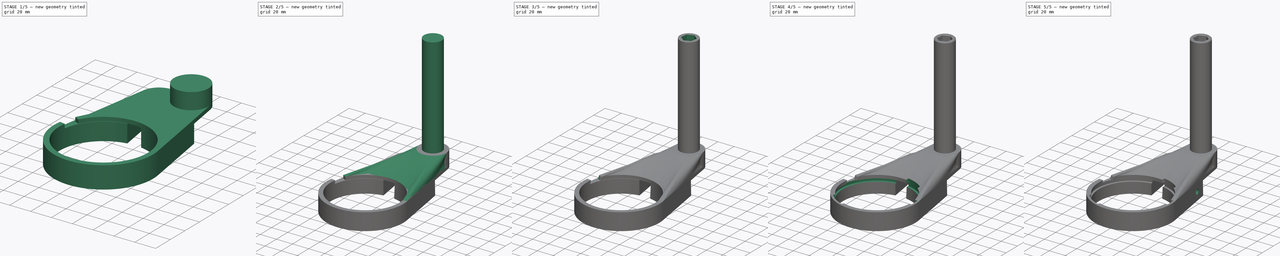
[diagram: build sequence overview — one tinted view per stage of 5, left to right]
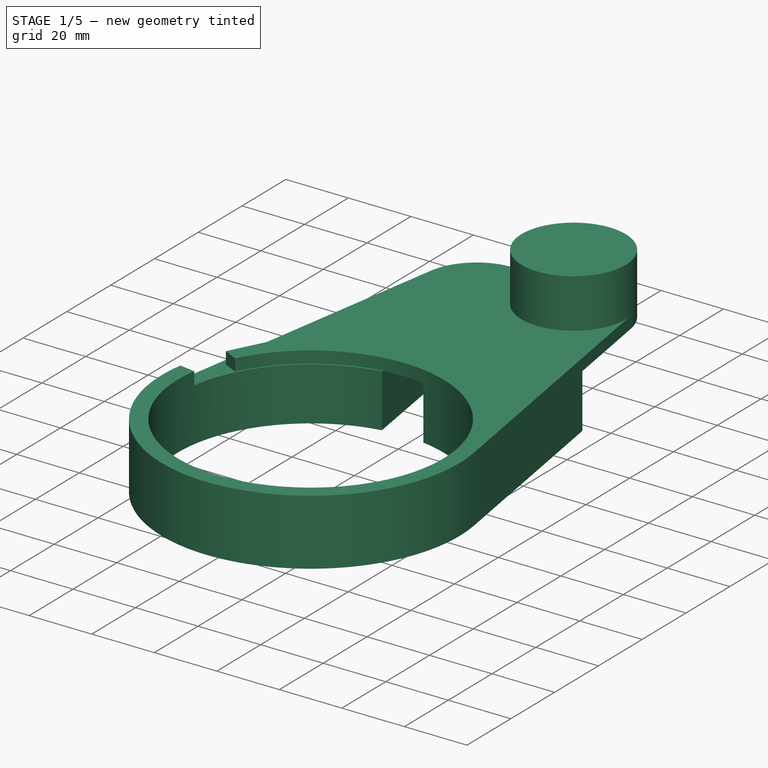
[diagram: stage 1 of 5 — iso view after this stage's code; geometry added in this stage tinted green]
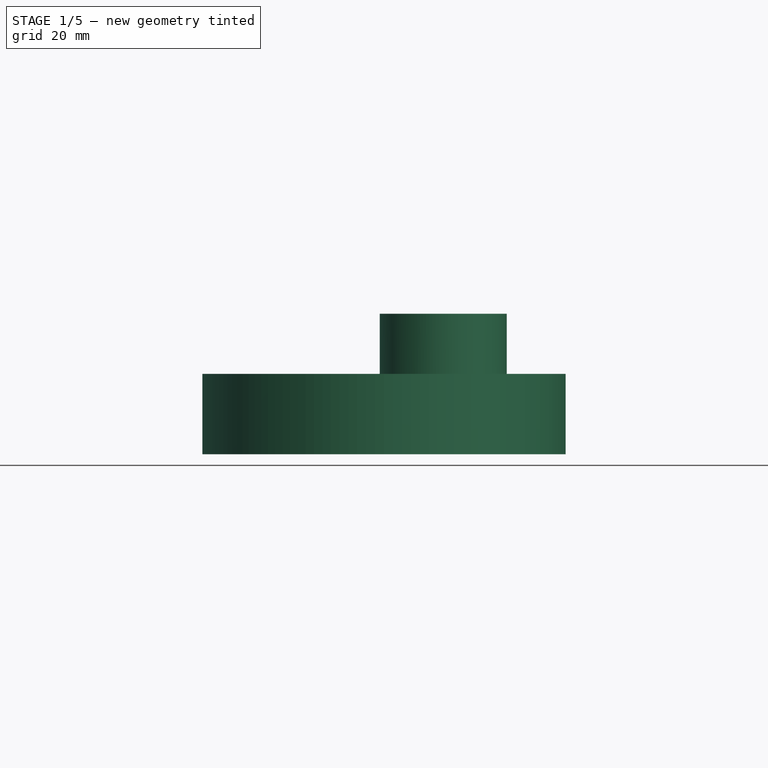
[diagram: stage 1 of 5 — front view after this stage's code; geometry added in this stage tinted green]
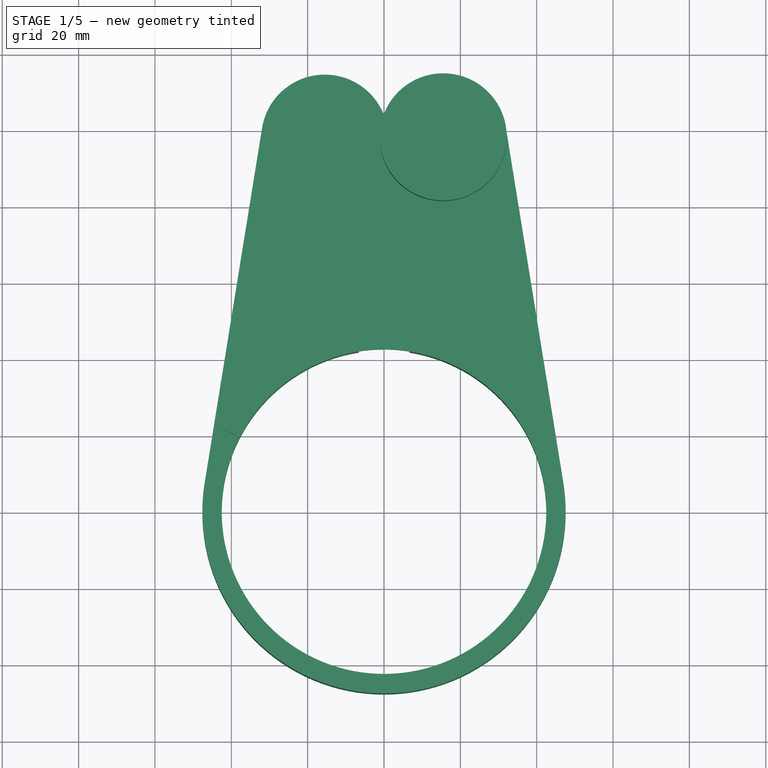
[diagram: stage 1 of 5 — top view after this stage's code; geometry added in this stage tinted green]
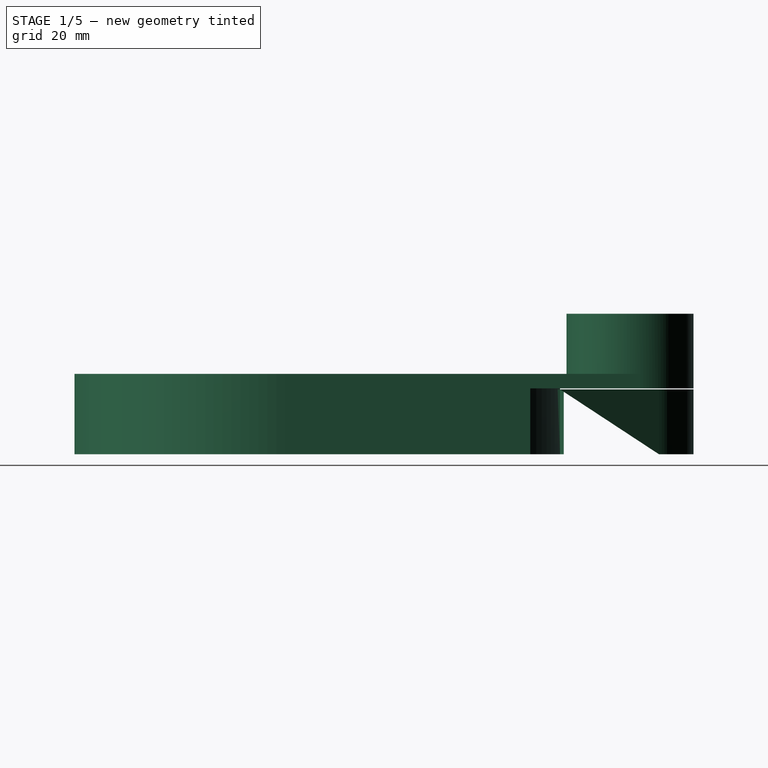
[diagram: stage 1 of 5 — right view after this stage's code; geometry added in this stage tinted green]
FCSTD DOCUMENT  (FreeCAD 0.21R33771 (Git))
Label: camera_handle
License: All rights reserved
LicenseURL: http://en.wikipedia.org/wiki/All_rights_reserved
objects: Sketcher::SketchObject×21, PartDesign::Pad×6, PartDesign::Pocket×6, PartDesign::Hole×5, PartDesign::Plane×3, PartDesign::Groove×2, PartDesign::AdditiveLoft×1, PartDesign::Line×1, PartDesign::CoordinateSystem×1, PartDesign::Chamfer×1, PartDesign::Body×1
note: 69 computed .brp shape members not serialized (recipe doc carries the construction recipe); baked Part::Feature solids carry a one-line shape summary decoded from their .brp

FEATURE [Sketcher::SketchObject] Sketch
  FullyConstrained = true
  MapMode = 5
  Support = -> [XY_Plane]
  sketch-geometry (15):
    g0: Circle CenterX=0 CenterY=0 CenterZ=0 NormalX=0 NormalY=0 NormalZ=1 AngleXU=0 Radius=42.5116
    g1: Circle CenterX=0 CenterY=0 CenterZ=0 NormalX=0 NormalY=0 NormalZ=1 AngleXU=0 Radius=47.5916
    g2: LineSegment StartX=42.5116 StartY=0 StartZ=0 EndX=47.5916 EndY=0 EndZ=0
    g3: Circle CenterX=-15.511 CenterY=97.9328 CenterZ=0 NormalX=0 NormalY=0 NormalZ=1 AngleXU=0 Radius=16.637
    g4: Circle CenterX=15.511 CenterY=97.9328 CenterZ=0 NormalX=0 NormalY=0 NormalZ=1 AngleXU=0 Radius=16.637
    g5: LineSegment StartX=0 StartY=0 StartZ=0 EndX=-15.511 EndY=97.9328 EndZ=0
    g6: LineSegment StartX=0 StartY=0 StartZ=0 EndX=15.511 EndY=97.9328 EndZ=0
    g7: GeomPoint X=-12.9084 Y=81.5007 Z=0
    g8: GeomPoint X=-7.44496 Y=47.0056 Z=0
    g9: LineSegment StartX=-31.9344 StartY=100.59 StartZ=0 EndX=-46.9805 EndY=7.60174 EndZ=0
    g10: LineSegment StartX=31.9344 StartY=100.59 StartZ=0 EndX=46.9805 EndY=7.60174 EndZ=0
    g11: LineSegment StartX=-42.3321 StartY=21.7475 StartZ=0 EndX=0.712643 EndY=105.535 EndZ=0
    g12: LineSegment StartX=-0.712643 StartY=105.535 StartZ=0 EndX=42.3321 EndY=21.7475 EndZ=0
    g13: ArcOfCircle CenterX=0 CenterY=0 CenterZ=0 NormalX=0 NormalY=0 NormalZ=1 AngleXU=0 Radius=80.598 StartAngle=1.09956 EndAngle=2.04204
    g14: GeomPoint X=12.6083 Y=79.6057 Z=0
  constraints (35):
    c: Coincident(g0,g-1)
    c: Diameter(g0) = 85.0232
    c: Coincident(g1,g0)
    c: PointOnObject(g2,g0)
    c: PointOnObject(g2,g1)
    c: Horizontal(g2)
    c: Perpendicular(g1,g2)
    c: DistanceX(g2,g2) = 5.08
    c: Symmetric(g3,g4,g-2)
    c: Coincident(g5,g0)
    c: Coincident(g5,g3)
    c: Coincident(g6,g0)
    c: Coincident(g6,g4)
    c: Equal(g3,g4)
    c: Angle(g6,g5) = 0.314159
    c: Diameter(g4) = 33.274
    c: PointOnObject(g7,g3)
    c: PointOnObject(g7,g5)
    c: PointOnObject(g8,g1)
    c: PointOnObject(g8,g5)
    c: Distance(g8,g7) = 34.925
    c: Tangent(g9,g1) = -1.5708
    c: Tangent(g9,g3) = -1.5708
    c: Tangent(g11,g4) = 1.5708
    c: Tangent(g11,g1) = 1.5708
    c: Tangent(g12,g3) = 1.5708
    c: Tangent(g12,g1) = 1.5708
    c: Tangent(g10,g4) = 1.5708
    c: Tangent(g10,g1) = 1.5708
    c: Coincident(g13,g0)
    c: PointOnObject(g13,g9)
    c: PointOnObject(g13,g10)
    c: PointOnObject(g14,g6)
    c: PointOnObject(g14,g13)
    c: PointOnObject(g14,g12)
FEATURE [Sketcher::SketchObject] Sketch001
  FullyConstrained = true
  MapMode = 5
  Support = -> [XY_Plane]
  expr: Constraints[14] = Sketch.Constraints[14]
  expr: Constraints[15] = Sketch.Constraints[15]
  expr: Constraints[1] = Sketch.Constraints[1]
  expr: Constraints[20] = Sketch.Constraints[20]
  expr: Constraints[7] = Sketch.Constraints[7]
  sketch-geometry (20):
    g0: ArcOfCircle CenterX=0 CenterY=0 CenterZ=0 NormalX=0 NormalY=0 NormalZ=1 AngleXU=0 Radius=42.5116 StartAngle=1.72788 EndAngle=7.6969
    g1: ArcOfCircle CenterX=0 CenterY=0 CenterZ=0 NormalX=0 NormalY=0 NormalZ=1 AngleXU=0 Radius=47.5916 StartAngle=2.98118 EndAngle=6.4436
    g2: LineSegment StartX=42.5116 StartY=0 StartZ=0 EndX=47.5916 EndY=0 EndZ=0
    g3: ArcOfCircle CenterX=-15.511 CenterY=97.9328 CenterZ=0 NormalX=0 NormalY=0 NormalZ=1 AngleXU=0 Radius=16.637 StartAngle=0.474575 EndAngle=2.98118
    g4: Circle CenterX=15.511 CenterY=97.9328 CenterZ=0 NormalX=0 NormalY=0 NormalZ=1 AngleXU=0 Radius=16.637
    g5: LineSegment StartX=0 StartY=0 StartZ=0 EndX=-15.511 EndY=97.9328 EndZ=0
    g6: LineSegment StartX=0 StartY=0 StartZ=0 EndX=15.511 EndY=97.9328 EndZ=0
    g7: GeomPoint X=-12.9084 Y=81.5007 Z=0
    g8: GeomPoint X=-7.44496 Y=47.0056 Z=0
    g9: LineSegment StartX=-31.9344 StartY=100.59 StartZ=0 EndX=-46.9805 EndY=7.60174 EndZ=0
    g10: LineSegment StartX=31.9344 StartY=100.59 StartZ=0 EndX=46.9805 EndY=7.60174 EndZ=0
    g11: LineSegment StartX=-42.3321 StartY=21.7475 StartZ=0 EndX=0.712643 EndY=105.535 EndZ=0
    g12: LineSegment StartX=-0.712643 StartY=105.535 StartZ=0 EndX=12.6083 EndY=79.6057 EndZ=0
    g13: LineSegment StartX=-12.6083 StartY=79.6057 StartZ=0 EndX=-7.44496 EndY=47.0056 EndZ=0
    g14: Circle CenterX=-15.511 CenterY=97.9328 CenterZ=0 NormalX=0 NormalY=0 NormalZ=1 AngleXU=0 Radius=16.637
    g15: ArcOfCircle CenterX=0 CenterY=0 CenterZ=0 NormalX=0 NormalY=0 NormalZ=1 AngleXU=0 Radius=80.598 StartAngle=1.41372 EndAngle=1.72788
    g16: LineSegment StartX=6.65028 StartY=41.9882 StartZ=0 EndX=12.6083 EndY=79.6057 EndZ=0
    g17: LineSegment StartX=-6.65028 StartY=41.9882 StartZ=0 EndX=-7.44496 EndY=47.0056 EndZ=0
    g18: ArcOfCircle CenterX=0 CenterY=0 CenterZ=0 NormalX=0 NormalY=0 NormalZ=1 AngleXU=0 Radius=80.598 StartAngle=1.09956 EndAngle=1.41372
    g19: LineSegment StartX=36.5907 StartY=71.8133 StartZ=0 EndX=46.9805 EndY=7.60174 EndZ=0
  constraints (49):
    c: Coincident(g0,g-1)
    c: Diameter(g0) = 85.0232
    c: Coincident(g1,g0)
    c: PointOnObject(g2,g0)
    c: PointOnObject(g2,g1)
    c: Horizontal(g2)
    c: Perpendicular(g1,g2)
    c: DistanceX(g2,g2) = 5.08
    c: Symmetric(g3,g4,g-2)
    c: Coincident(g5,g0)
    c: Coincident(g5,g3)
    c: Coincident(g6,g0)
    c: Coincident(g6,g4)
    c: Equal(g3,g4)
    c: Angle(g6,g5) = 0.314159
    c: Diameter(g4) = 33.274
    c: PointOnObject(g7,g3)
    c: PointOnObject(g7,g5)
    c: PointOnObject(g8,g1)
    c: PointOnObject(g8,g5)
    c: Distance(g8,g7) = 34.925
    c: Tangent(g11,g4) = 1.5708
    c: Tangent(g10,g4) = 1.5708
    c: Tangent(g3,g12) = 1.5708
    c: Tangent(g3,g9) = -1.5708
    c: PointOnObject(g13,g5)
    c: Coincident(g13,g8)
    c: Tangent(g1,g9) = -1.5708
    c: Tangent(g12,g1)
    c: Coincident(g14,g3)
    c: PointOnObject(g3,g14)
    c: PointOnObject(g12,g6)
    c: Coincident(g15,g0)
    c: Coincident(g15,g12)
    c: Coincident(g15,g13)
    c: Tangent(g11,g1) = 1.5708
    c: PointOnObject(g16,g6)
    c: PointOnObject(g0,g6)
    c: PointOnObject(g0,g5)
    c: Coincident(g16,g0)
    c: Coincident(g17,g0)
    c: Coincident(g17,g13)
    c: Coincident(g18,g0)
    c: Coincident(g18,g12)
    c: PointOnObject(g18,g10)
    c: Coincident(g19,g18)
    c: Coincident(g19,g10)
    c: Tangent(g1,g10) = 1.5708
    c: PointOnObject(g16,g18)
FEATURE [PartDesign::Pad] Pad
  Direction = (0,0,1)
  Length = 17.018
  Length2 = 10
  Profile = -> Sketch001
  ReferenceAxis = -> Sketch001 [N_Axis]
  Type = 0
FEATURE [Sketcher::SketchObject] Sketch003
  ExternalGeometry = -> [Pad]
  FullyConstrained = true
  MapMode = 5
  Placement = pos=(0,0,17.018) rot=(0,0,1;0rad)
  Support = -> [Pad]
  sketch-geometry (6):
    g0: ArcOfCircle CenterX=0 CenterY=0 CenterZ=0 NormalX=0 NormalY=0 NormalZ=1 AngleXU=0 Radius=47.5916 StartAngle=2.98118 EndAngle=6.4436
    g1: ArcOfCircle CenterX=0 CenterY=0 CenterZ=0 NormalX=0 NormalY=0 NormalZ=1 AngleXU=0 Radius=80.598 StartAngle=1.09956 EndAngle=1.41372
    g2: ArcOfCircle CenterX=0 CenterY=0 CenterZ=0 NormalX=0 NormalY=0 NormalZ=1 AngleXU=0 Radius=42.5116 StartAngle=2.98118 EndAngle=7.6969
    g3: LineSegment StartX=46.9806 StartY=7.60165 StartZ=0 EndX=36.5907 EndY=71.8133 EndZ=0
    g4: LineSegment StartX=6.65028 StartY=41.9882 StartZ=0 EndX=12.6083 EndY=79.6057 EndZ=0
    g5: LineSegment StartX=-46.9805 StartY=7.60174 StartZ=0 EndX=-41.9658 EndY=6.79032 EndZ=0
  constraints (18):
    c: Coincident(g0,g-7)
    c: Coincident(g0,g-7)
    c: Coincident(g1,g0)
    c: Coincident(g1,g-4)
    c: Coincident(g2,g0)
    c: PointOnObject(g1,g-5)
    c: PointOnObject(g2,g-4)
    c: PointOnObject(g0,g-5)
    c: Coincident(g3,g0)
    c: PointOnObject(g3,g-5)
    c: PointOnObject(g3,g1)
    c: Coincident(g4,g2)
    c: PointOnObject(g4,g1)
    c: PointOnObject(g4,g-4)
    c: Coincident(g5,g0)
    c: PointOnObject(g0,g5)
    c: Coincident(g2,g5)
    c: PointOnObject(g2,g-6)
FEATURE [PartDesign::Pad] Pad002
  BaseFeature = -> Pad
  Direction = (0,0,1)
  Length = 0.254
  Length2 = 10
  Profile = -> Sketch003
  ReferenceAxis = -> Sketch003 [N_Axis]
  Type = 0
FEATURE [Sketcher::SketchObject] Sketch004
  FullyConstrained = true
  MapMode = 5
  Placement = pos=(0,0,17.272) rot=(0,0,1;0rad)
  Support = -> [Pad002]
  expr: Constraints[14] = Sketch.Constraints[14]
  expr: Constraints[15] = Sketch.Constraints[15]
  expr: Constraints[1] = Sketch.Constraints[1]
  expr: Constraints[20] = Sketch.Constraints[20]
  expr: Constraints[7] = Sketch.Constraints[7]
  sketch-geometry (14):
    g0: ArcOfCircle CenterX=0 CenterY=0 CenterZ=0 NormalX=0 NormalY=0 NormalZ=1 AngleXU=0 Radius=42.5116 StartAngle=2.98118 EndAngle=8.9502
    g1: ArcOfCircle CenterX=0 CenterY=0 CenterZ=0 NormalX=0 NormalY=0 NormalZ=1 AngleXU=0 Radius=47.5916 StartAngle=2.98118 EndAngle=6.4436
    g2: LineSegment StartX=42.5116 StartY=0 StartZ=0 EndX=47.5916 EndY=0 EndZ=0
    g3: Circle CenterX=-15.511 CenterY=97.9328 CenterZ=0 NormalX=0 NormalY=0 NormalZ=1 AngleXU=0 Radius=16.637
    g4: ArcOfCircle CenterX=15.511 CenterY=97.9328 CenterZ=0 NormalX=0 NormalY=0 NormalZ=1 AngleXU=0 Radius=16.637 StartAngle=0.160416 EndAngle=2.66702
    g5: LineSegment StartX=0 StartY=0 StartZ=0 EndX=-15.511 EndY=97.9328 EndZ=0
    g6: LineSegment StartX=0 StartY=0 StartZ=0 EndX=15.511 EndY=97.9328 EndZ=0
    g7: GeomPoint X=-12.9084 Y=81.5007 Z=0
    g8: GeomPoint X=-7.44496 Y=47.0056 Z=0
    g9: LineSegment StartX=-31.9344 StartY=100.59 StartZ=0 EndX=-46.9805 EndY=7.60174 EndZ=0
    g10: LineSegment StartX=31.9344 StartY=100.59 StartZ=0 EndX=46.9805 EndY=7.60174 EndZ=0
    g11: LineSegment StartX=-42.3321 StartY=21.7475 StartZ=0 EndX=0.712643 EndY=105.535 EndZ=0
    g12: LineSegment StartX=-46.9805 StartY=7.60174 StartZ=0 EndX=-41.9658 EndY=6.79032 EndZ=0
    g13: LineSegment StartX=-42.3321 StartY=21.7475 StartZ=0 EndX=-37.8135 EndY=19.4261 EndZ=0
  constraints (34):
    c: Coincident(g0,g-1)
    c: Diameter(g0) = 85.0232
    c: Coincident(g1,g0)
    c: PointOnObject(g2,g0)
    c: PointOnObject(g2,g1)
    c: Horizontal(g2)
    c: Perpendicular(g1,g2)
    c: DistanceX(g2,g2) = 5.08
    c: Symmetric(g3,g4,g-2)
    c: Coincident(g5,g0)
    c: Coincident(g5,g3)
    c: Coincident(g6,g0)
    c: Coincident(g6,g4)
    c: Equal(g3,g4)
    c: Angle(g6,g5) = 0.314159
    c: Diameter(g4) = 33.274
    c: PointOnObject(g7,g3)
    c: PointOnObject(g7,g5)
    c: PointOnObject(g8,g1)
    c: PointOnObject(g8,g5)
    c: Distance(g8,g7) = 34.925
    c: Tangent(g9,g3) = -1.5708
    c: Coincident(g12,g9)
    c: Coincident(g13,g11)
    c: PointOnObject(g0,g12)
    c: PointOnObject(g0,g13)
    c: Tangent(g1,g9) = -1.5708
    c: Coincident(g0,g13)
    c: Coincident(g0,g12)
    c: Tangent(g4,g10) = 1.5708
    c: Tangent(g4,g11) = 1.5708
    c: Tangent(g1,g10) = 1.5708
    c: Angle(g13,g12) = 0.314159
    c: Tangent(g11,g1)
FEATURE [PartDesign::Pad] Pad003
  BaseFeature = -> Pad002
  Direction = (0,0,1)
  Length = 3.81
  Length2 = 10
  Profile = -> Sketch004
  ReferenceAxis = -> Sketch004 [N_Axis]
  Type = 0
FEATURE [Sketcher::SketchObject] Sketch005
  FullyConstrained = true
  MapMode = 5
  Placement = pos=(0,0,21.082) rot=(0,0,1;0rad)
  Support = -> [Pad003]
  expr: Constraints[14] = Sketch.Constraints[14]
  expr: Constraints[15] = Sketch.Constraints[15]
  expr: Constraints[1] = Sketch.Constraints[1]
  expr: Constraints[20] = Sketch.Constraints[20]
  expr: Constraints[7] = Sketch.Constraints[7]
  sketch-geometry (15):
    g0: Circle CenterX=0 CenterY=0 CenterZ=0 NormalX=0 NormalY=0 NormalZ=1 AngleXU=0 Radius=42.5116
    g1: Circle CenterX=0 CenterY=0 CenterZ=0 NormalX=0 NormalY=0 NormalZ=1 AngleXU=0 Radius=47.5916
    g2: LineSegment StartX=42.5116 StartY=0 StartZ=0 EndX=47.5916 EndY=0 EndZ=0
    g3: Circle CenterX=-15.511 CenterY=97.9328 CenterZ=0 NormalX=0 NormalY=0 NormalZ=1 AngleXU=0 Radius=16.637
    g4: Circle CenterX=15.511 CenterY=97.9328 CenterZ=0 NormalX=0 NormalY=0 NormalZ=1 AngleXU=0 Radius=16.637
    g5: LineSegment StartX=0 StartY=0 StartZ=0 EndX=-15.511 EndY=97.9328 EndZ=0
    g6: LineSegment StartX=0 StartY=0 StartZ=0 EndX=15.511 EndY=97.9328 EndZ=0
    g7: GeomPoint X=-12.9084 Y=81.5007 Z=0
    g8: GeomPoint X=-7.44496 Y=47.0056 Z=0
    g9: LineSegment StartX=-31.9344 StartY=100.59 StartZ=0 EndX=-46.9805 EndY=7.60174 EndZ=0
    g10: LineSegment StartX=31.9344 StartY=100.59 StartZ=0 EndX=46.9805 EndY=7.60174 EndZ=0
    g11: LineSegment StartX=-42.3321 StartY=21.7475 StartZ=0 EndX=0.712643 EndY=105.535 EndZ=0
    g12: LineSegment StartX=-0.712643 StartY=105.535 StartZ=0 EndX=42.3321 EndY=21.7475 EndZ=0
    g13: ArcOfCircle CenterX=0 CenterY=0 CenterZ=0 NormalX=0 NormalY=0 NormalZ=1 AngleXU=0 Radius=80.598 StartAngle=1.09956 EndAngle=2.04204
    g14: GeomPoint X=12.6083 Y=79.6057 Z=0
  constraints (35):
    c: Coincident(g0,g-1)
    c: Diameter(g0) = 85.0232
    c: Coincident(g1,g0)
    c: PointOnObject(g2,g0)
    c: PointOnObject(g2,g1)
    c: Horizontal(g2)
    c: Perpendicular(g1,g2)
    c: DistanceX(g2,g2) = 5.08
    c: Symmetric(g3,g4,g-2)
    c: Coincident(g5,g0)
    c: Coincident(g5,g3)
    c: Coincident(g6,g0)
    c: Coincident(g6,g4)
    c: Equal(g3,g4)
    c: Angle(g6,g5) = 0.314159
    c: Diameter(g4) = 33.274
    c: PointOnObject(g7,g3)
    c: PointOnObject(g7,g5)
    c: PointOnObject(g8,g1)
    c: PointOnObject(g8,g5)
    c: Distance(g8,g7) = 34.925
    c: Tangent(g9,g1) = -1.5708
    c: Tangent(g9,g3) = -1.5708
    c: Tangent(g11,g4) = 1.5708
    c: Tangent(g11,g1) = 1.5708
    c: Tangent(g12,g3) = 1.5708
    c: Tangent(g12,g1) = 1.5708
    c: Tangent(g10,g4) = 1.5708
    c: Tangent(g10,g1) = 1.5708
    c: Coincident(g13,g0)
    c: PointOnObject(g13,g9)
    c: PointOnObject(g13,g10)
    c: PointOnObject(g14,g6)
    c: PointOnObject(g14,g13)
    c: PointOnObject(g14,g12)
FEATURE [PartDesign::Pad] Pad004
  BaseFeature = -> Pad003
  Direction = (0,0,1)
  Length = 15.748
  Length2 = 10
  Profile = -> Sketch005
  ReferenceAxis = -> Sketch005 [N_Axis]
  Type = 0
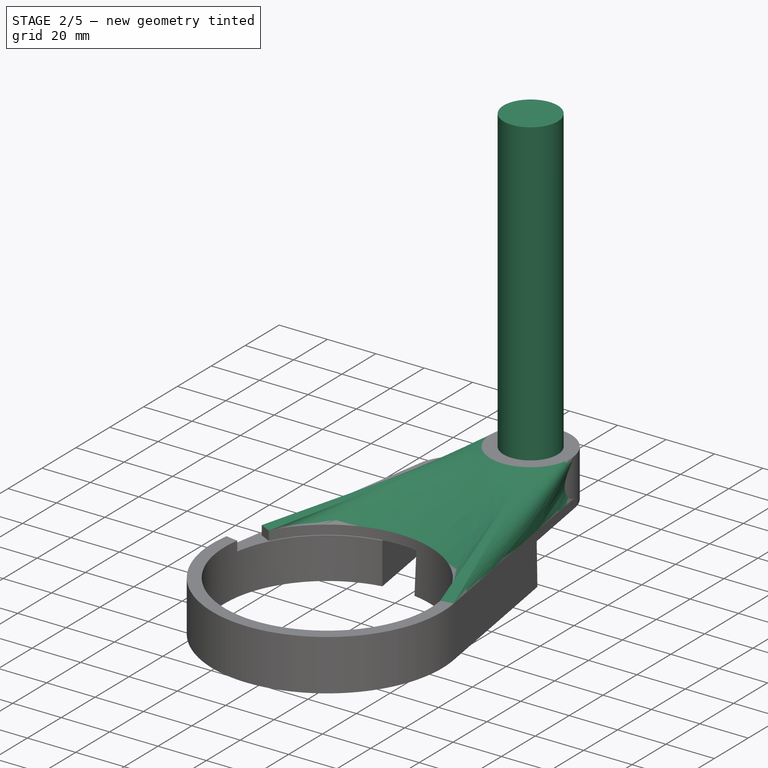
[diagram: stage 2 of 5 — iso view after this stage's code; geometry added in this stage tinted green]
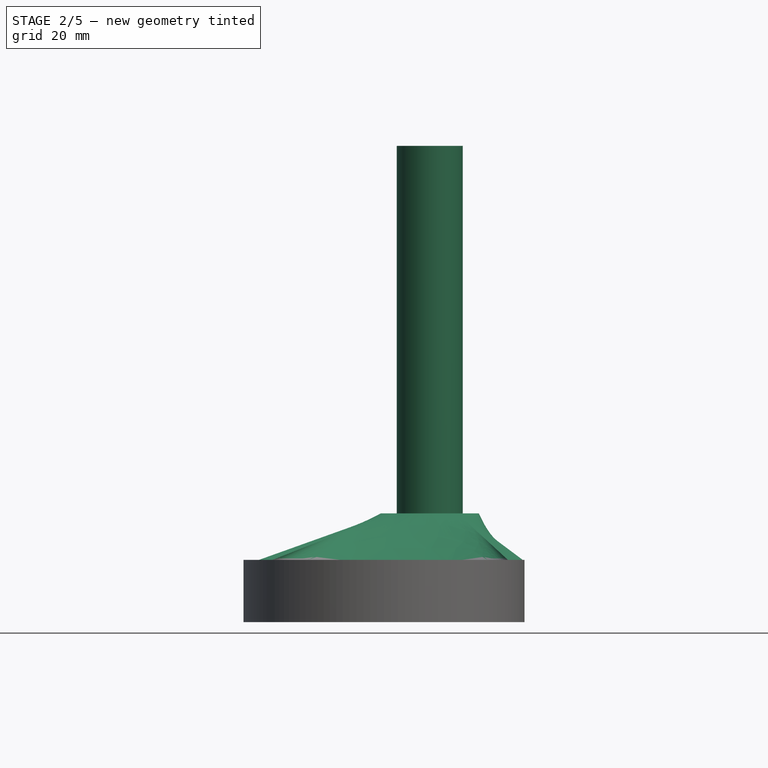
[diagram: stage 2 of 5 — front view after this stage's code; geometry added in this stage tinted green]
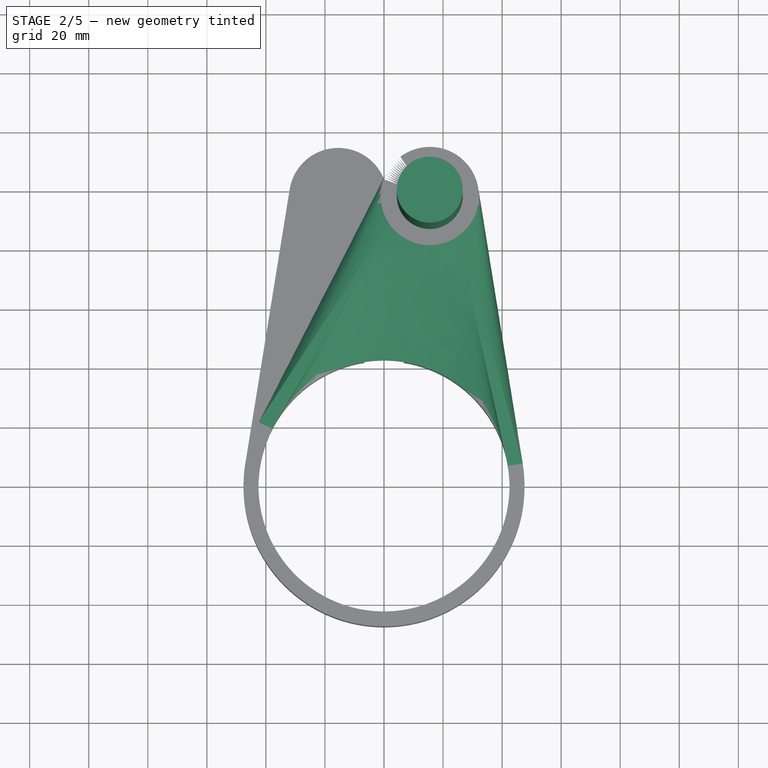
[diagram: stage 2 of 5 — top view after this stage's code; geometry added in this stage tinted green]
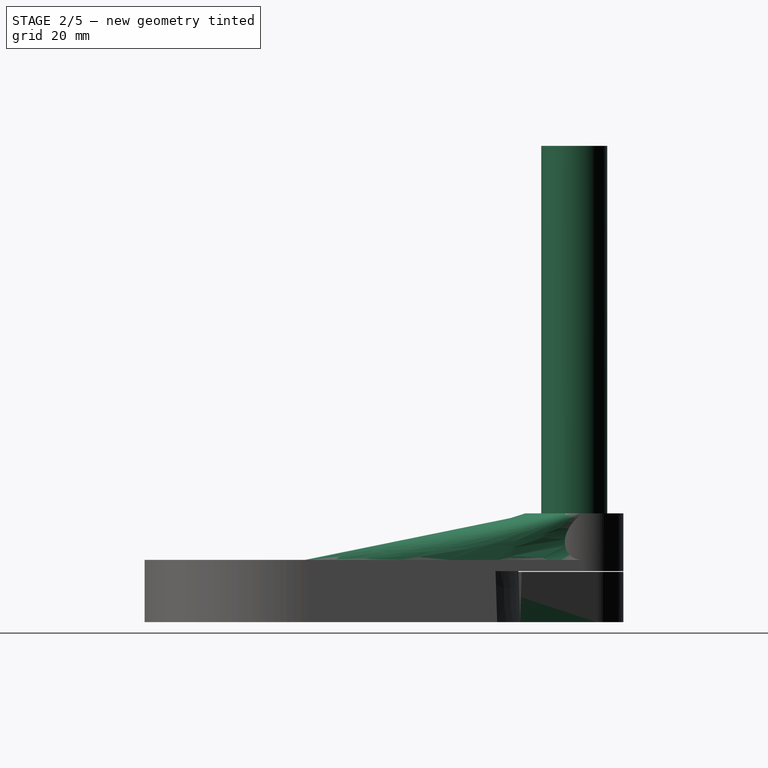
[diagram: stage 2 of 5 — right view after this stage's code; geometry added in this stage tinted green]
FEATURE [Sketcher::SketchObject] Sketch007
  ExternalGeometry = -> [Pad004]
  FullyConstrained = true
  MapMode = 5
  Placement = pos=(0,0,36.83) rot=(0,0,1;0rad)
  Support = -> [Pad004]
  sketch-geometry (1):
    g0: Circle CenterX=15.511 CenterY=97.9328 CenterZ=0 NormalX=0 NormalY=0 NormalZ=1 AngleXU=0 Radius=16.637
  constraints (2):
    c: Coincident(g0,g-3)
    c: Tangent(g0,g-3)
FEATURE [Sketcher::SketchObject] Sketch008
  ExternalGeometry = -> [Pad004]
  FullyConstrained = true
  MapMode = 5
  Placement = pos=(0,0,21.082) rot=(0,0,1;0rad)
  Support = -> [Pad004]
  sketch-geometry (6):
    g0: LineSegment StartX=-42.3321 StartY=21.7475 StartZ=0 EndX=0.712643 EndY=105.535 EndZ=0
    g1: LineSegment StartX=31.9344 StartY=100.59 StartZ=0 EndX=46.9805 EndY=7.60174 EndZ=0
    g2: ArcOfCircle CenterX=0 CenterY=0 CenterZ=0 NormalX=0 NormalY=0 NormalZ=1 AngleXU=0 Radius=42.5116 StartAngle=0.160416 EndAngle=2.66702
    g3: LineSegment StartX=-42.3321 StartY=21.7475 StartZ=0 EndX=-37.8135 EndY=19.4261 EndZ=0
    g4: LineSegment StartX=46.9805 StartY=7.60174 StartZ=0 EndX=41.9658 EndY=6.79032 EndZ=0
    g5: ArcOfCircle CenterX=15.511 CenterY=97.9328 CenterZ=0 NormalX=0 NormalY=0 NormalZ=1 AngleXU=0 Radius=16.637 StartAngle=0.160416 EndAngle=2.66702
  constraints (13):
    c: Coincident(g0,g-3)
    c: Coincident(g0,g-3)
    c: Coincident(g1,g-5)
    c: Coincident(g1,g-5)
    c: Coincident(g2,g-6)
    c: Coincident(g2,g-6)
    c: Coincident(g3,g0)
    c: Coincident(g3,g2)
    c: Coincident(g4,g1)
    c: Coincident(g4,g2)
    c: PointOnObject(g2,g4)
    c: Coincident(g5,g0)
    c: Tangent(g5,g1) = 1.5708
FEATURE [PartDesign::AdditiveLoft] AdditiveLoft
  BaseFeature = -> Pad004
  Closed = false
  Profile = -> Sketch007
  Ruled = true
  Sections = -> [Sketch008]
FEATURE [Sketcher::SketchObject] Sketch009
  ExternalGeometry = -> [Pad004]
  FullyConstrained = true
  MapMode = 5
  Placement = pos=(0,0,36.83) rot=(0,0,1;0rad)
  Support = -> [Pad004]
  sketch-geometry (1):
    g0: Circle CenterX=15.511 CenterY=97.9328 CenterZ=0 NormalX=0 NormalY=0 NormalZ=1 AngleXU=0 Radius=11.176
  constraints (2):
    c: Coincident(g0,g-3)
    c: Diameter(g0) = 22.352
FEATURE [PartDesign::Pad] Pad005
  BaseFeature = -> AdditiveLoft
  Direction = (0,0,1)
  Length = 124.46
  Length2 = 10
  Profile = -> Sketch009
  ReferenceAxis = -> Sketch009 [N_Axis]
  Type = 0
FEATURE [Sketcher::SketchObject] Sketch010
  ExternalGeometry = -> [Pad005]
  FullyConstrained = true
  MapMode = 5
  Placement = pos=(-7e-15,-1.1e-15,0) rot=(0.516965,0.605288,0.605288;2.18734rad)
  Support = -> [Pad005]
  sketch-geometry (3):
    g0: LineSegment StartX=80.1457 StartY=17.272 StartZ=0 EndX=80.598 EndY=7.21435e-10 EndZ=0
    g1: LineSegment StartX=80.598 StartY=7.21435e-10 StartZ=0 EndX=81.0503 EndY=17.272 EndZ=0
    g2: LineSegment StartX=80.1457 StartY=17.272 StartZ=0 EndX=81.0503 EndY=17.272 EndZ=0
  constraints (8):
    c: PointOnObject(g0,g-3)
    c: Coincident(g1,g0)
    c: Angle(g1,g0) = 0.0523599
    c: PointOnObject(g-3,g1)
    c: PointOnObject(g0,g-4)
    c: Coincident(g2,g0)
    c: Coincident(g2,g1)
    c: Symmetric(g0,g1,g-3)
FEATURE [PartDesign::Groove] Groove
  Angle = 40
  Axis = (1e-16,1e-16,1)
  Base = (0,0,0)
  BaseFeature = -> Pad005
  Profile = -> Sketch010
  ReferenceAxis = -> Z_Axis
  Reversed = true
FEATURE [PartDesign::Line] DatumLine
  AttacherType = Attacher::AttachEngineLine
  Length = 20
  MapMode = 29
  Placement = pos=(6.65028,41.9882,0) rot=(0,0,1;0rad)
  ResizeMode = 0
  Support = -> [Groove]
FEATURE [PartDesign::Plane] DatumPlane
  AttachmentOffset = pos=(0,0,0) rot=(0,-1,0;0.15708rad)
  Length = 148.906
  MapMode = 3
  Placement = pos=(0,0,0) rot=(0.993863,-0.078219,-0.078219;1.57695rad)
  ResizeMode = 0
  Support = -> [XY_Plane]
  Width = 216.082
FEATURE [PartDesign::CoordinateSystem] Local_CS
  AttacherType = Attacher::AttachEngine3D
  AttachmentOffset = pos=(0,0,0) rot=(0,0,-1;0.15708rad)
  MapMode = 1
  Placement = pos=(6.65028,41.9882,0) rot=(0,0,1;0rad)
  Support = -> [Groove]
FEATURE [PartDesign::Plane] DatumPlane001
  Length = 210.862
  MapMode = 13
  Placement = pos=(4.43352,27.9921,0.333333) rot=(0.637718,0.544663,0.544663;2.00621rad)
  ResizeMode = 0
  Support = -> [DatumLine,Z_Axis]
  Width = 222.378
FEATURE [PartDesign::Plane] DatumPlane002
  AttachmentOffset = pos=(0,0,0) rot=(-0.078219,-0.078219,-0.993863;1.57695rad)
  Length = 148.906
  MapMode = 2
  Placement = pos=(0,0,0) rot=(0.993863,-0.078219,-0.078219;1.57695rad)
  ResizeMode = 0
  Support = -> [Z_Axis]
  Width = 216.082
FEATURE [Sketcher::SketchObject] Sketch011
  ExternalGeometry = -> [Groove]
  FullyConstrained = true
  MapMode = 5
  Placement = pos=(0,0,0) rot=(0.993863,-0.078219,-0.078219;1.57695rad)
  Support = -> [DatumPlane002]
  sketch-geometry (3):
    g0: LineSegment StartX=8.1e-15 StartY=17.272 StartZ=0 EndX=0.905187 EndY=17.272 EndZ=0
    g1: LineSegment StartX=0.905187 StartY=17.272 StartZ=0 EndX=0 EndY=-1.315e-13 EndZ=0
    g2: LineSegment StartX=0 StartY=-1.315e-13 StartZ=0 EndX=8.1e-15 EndY=17.272 EndZ=0
  constraints (8):
    c: Coincident(g-4,g0)
    c: PointOnObject(g0,g-4)
    c: Coincident(g0,g1)
    c: PointOnObject(g1,g-2)
    c: Coincident(g1,g2)
    c: Coincident(g2,g0)
    c: PointOnObject(g-3,g1)
    c: Angle(g1,g2) = 0.0523599
FEATURE [PartDesign::Pocket] Pocket
  BaseFeature = -> Groove
  Direction = (0.156434,0.987688,0)
  Length = 81.2038
  Length2 = 5
  Profile = -> Sketch011
  ReferenceAxis = -> Sketch011 [N_Axis]
  Type = 0
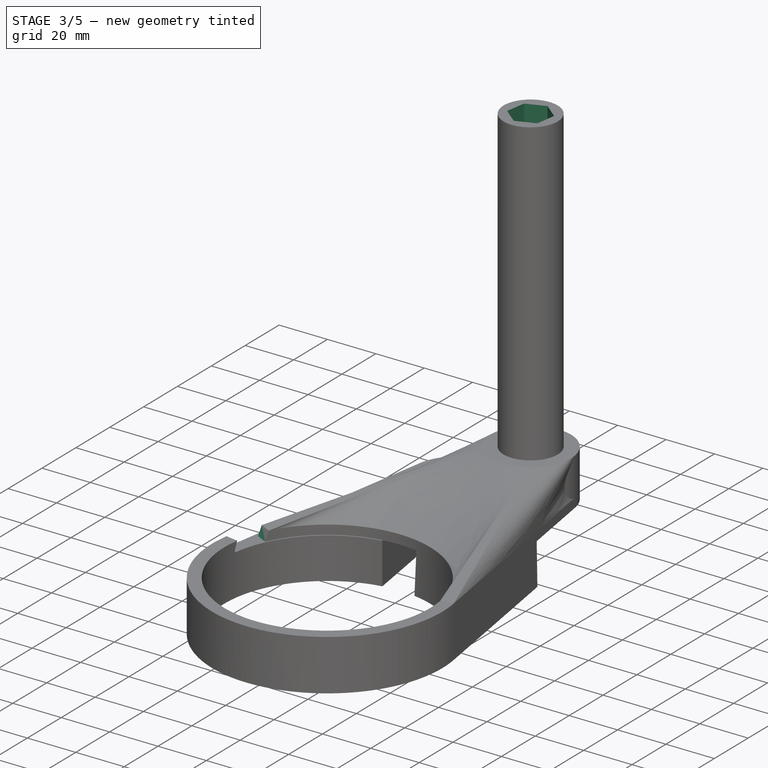
[diagram: stage 3 of 5 — iso view after this stage's code; geometry added in this stage tinted green]
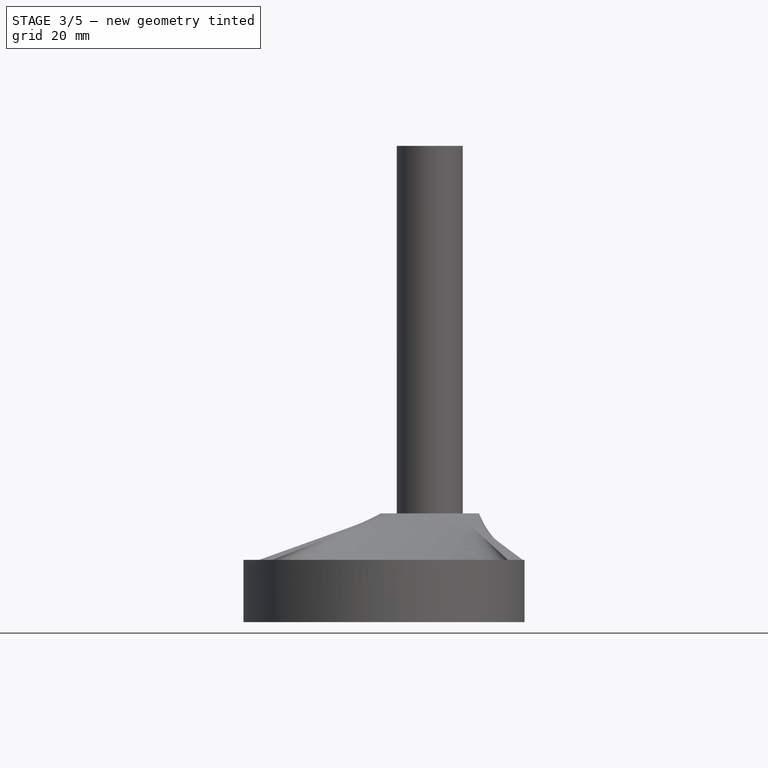
[diagram: stage 3 of 5 — front view after this stage's code; geometry added in this stage tinted green]
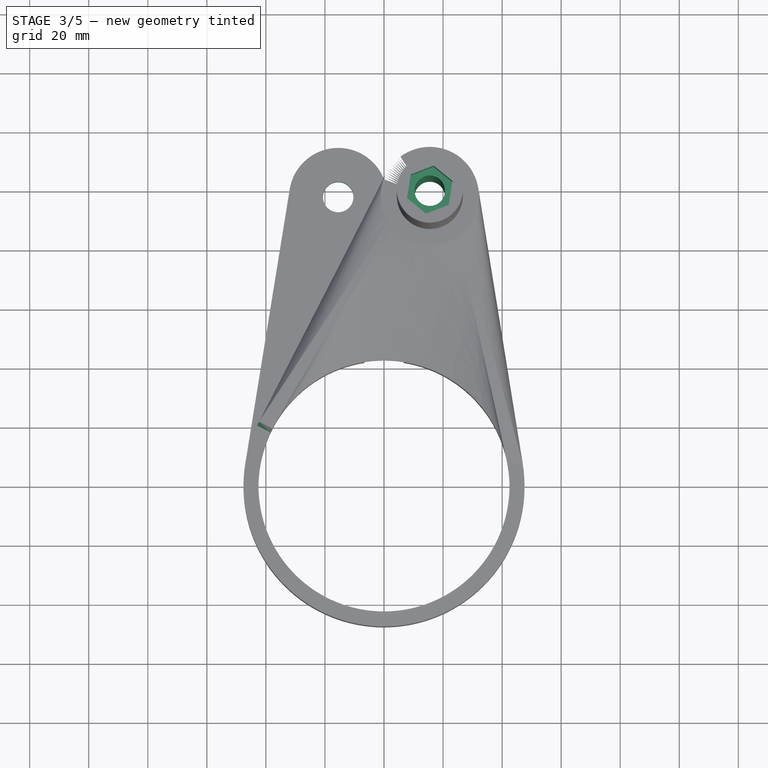
[diagram: stage 3 of 5 — top view after this stage's code; geometry added in this stage tinted green]
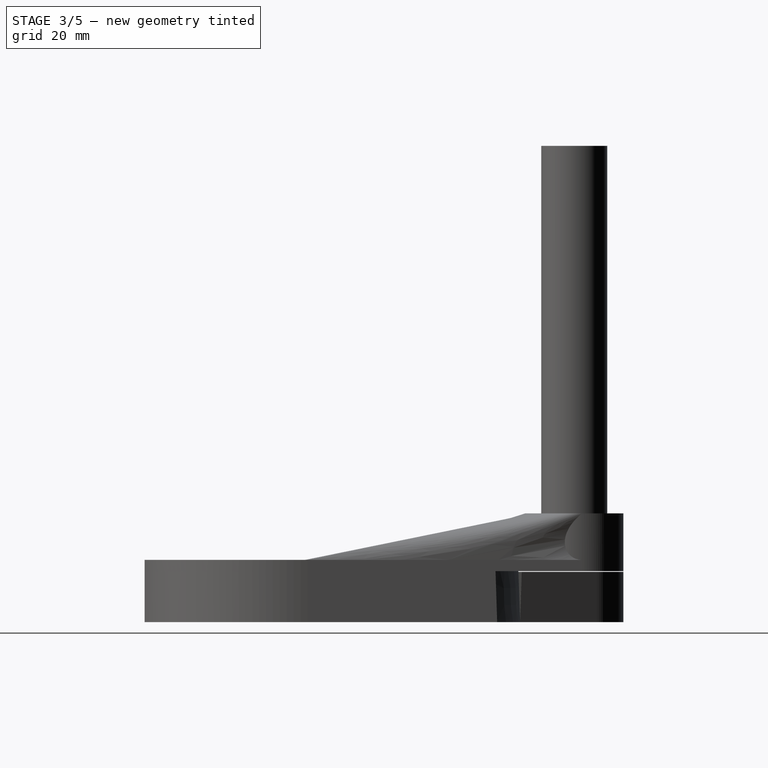
[diagram: stage 3 of 5 — right view after this stage's code; geometry added in this stage tinted green]
FEATURE [Sketcher::SketchObject] Sketch012
  ExternalGeometry = -> [Pocket]
  FullyConstrained = false
  MapMode = 5
  Placement = pos=(0,0,17.272) rot=(1,0,0;3.14159rad)
  Support = -> [Pocket]
  sketch-geometry (1):
    g0: Circle CenterX=15.511 CenterY=-97.9328 CenterZ=0 NormalX=0 NormalY=0 NormalZ=1 AngleXU=0 Radius=4.38864
  constraints (1):
    c: Coincident(g0,g-3)
FEATURE [PartDesign::Hole] Hole
  BaseFeature = -> Pocket
  CustomThreadClearance = 0
  Depth = 499.795
  DepthType = 1
  Diameter = 10.3
  DrillForDepth = false
  DrillPoint = 1
  DrillPointAngle = 118
  HoleCutCountersinkAngle = 90
  HoleCutCustomValues = false
  HoleCutDepth = 0
  HoleCutDiameter = 0
  HoleCutType = 0
  ModelThread = false
  Profile = -> Sketch012
  Tapered = false
  TaperedAngle = 90
  ThreadClass = 0
  ThreadDepth = 499.795
  ThreadDepthType = 0
  ThreadDirection = 0
  ThreadFit = 0
  ThreadSize = 11
  ThreadType = 3
  Threaded = false
  UseCustomThreadClearance = false
FEATURE [Sketcher::SketchObject] Sketch013
  ExternalGeometry = -> [Hole]
  FullyConstrained = false
  MapMode = 5
  Placement = pos=(0,0,0) rot=(1,0,0;3.14159rad)
  Support = -> [Hole]
  sketch-geometry (1):
    g0: Circle CenterX=-15.511 CenterY=-97.9328 CenterZ=0 NormalX=0 NormalY=0 NormalZ=1 AngleXU=0 Radius=5.73688
  constraints (1):
    c: Coincident(g0,g-3)
FEATURE [PartDesign::Hole] Hole001
  BaseFeature = -> Hole
  CustomThreadClearance = 0
  Depth = 499.795
  DepthType = 1
  Diameter = 10.3
  DrillForDepth = false
  DrillPoint = 1
  DrillPointAngle = 118
  HoleCutCountersinkAngle = 90
  HoleCutCustomValues = false
  HoleCutDepth = 7.112
  HoleCutDiameter = 20.32
  HoleCutType = 1
  ModelThread = false
  Profile = -> Sketch013
  Tapered = false
  TaperedAngle = 90
  ThreadClass = 0
  ThreadDepth = 499.795
  ThreadDepthType = 0
  ThreadDirection = 0
  ThreadFit = 0
  ThreadSize = 11
  ThreadType = 3
  Threaded = false
  UseCustomThreadClearance = false
FEATURE [Sketcher::SketchObject] Sketch014
  ExternalGeometry = -> [Hole001]
  FullyConstrained = true
  MapMode = 5
  Placement = pos=(-42.3321,21.7475,0) rot=(-0.396341,0.649197,0.649197;3.89629rad)
  Support = -> [Hole001]
  sketch-geometry (3):
    g0: LineSegment StartX=-1.68e-14 StartY=17.272 StartZ=0 EndX=1.38673 EndY=17.272 EndZ=0
    g1: LineSegment StartX=1.38673 StartY=17.272 StartZ=0 EndX=-1.67e-14 EndY=21.082 EndZ=0
    g2: LineSegment StartX=-1.67e-14 StartY=21.082 StartZ=0 EndX=-1.68e-14 EndY=17.272 EndZ=0
  constraints (7):
    c: Coincident(g-3,g0)
    c: Coincident(g0,g1)
    c: Coincident(g1,g-3)
    c: Coincident(g1,g2)
    c: Coincident(g2,g0)
    c: Horizontal(g0)
    c: Angle(g2,g1) = 0.349066
FEATURE [PartDesign::Pad] Pad006
  BaseFeature = -> Hole001
  Direction = (-0.889487,0.456961,0)
  Length = 5.08
  Length2 = 10
  Profile = -> Sketch014
  ReferenceAxis = -> Sketch014 [N_Axis]
  Reversed = true
  Type = 0
FEATURE [Sketcher::SketchObject] Sketch015
  ExternalGeometry = -> [Pad006]
  FullyConstrained = true
  MapMode = 5
  Placement = pos=(-46.9805,7.60174,0) rot=(-0.515685,0.605834,0.605834;4.09383rad)
  Support = -> [Pad006]
  sketch-geometry (3):
    g0: LineSegment StartX=1.2e-15 StartY=21.082 StartZ=0 EndX=1.47918 EndY=17.018 EndZ=0
    g1: LineSegment StartX=1.2e-15 StartY=17.018 StartZ=0 EndX=1.2e-15 EndY=21.082 EndZ=0
    g2: LineSegment StartX=1.2e-15 StartY=17.018 StartZ=0 EndX=1.47918 EndY=17.018 EndZ=0
  constraints (8):
    c: Coincident(g-3,g0)
    c: Coincident(g1,g0)
    c: Angle(g1,g0) = 0.349066
    c: PointOnObject(g1,g-4)
    c: PointOnObject(g0,g-4)
    c: Vertical(g1)
    c: Coincident(g2,g1)
    c: Coincident(g2,g0)
FEATURE [PartDesign::Pocket] Pocket001
  BaseFeature = -> Pad006
  Direction = (0.987161,-0.159729,-1e-16)
  Length = 6.35
  Length2 = 5
  Profile = -> Sketch015
  ReferenceAxis = -> Sketch015 [N_Axis]
  Type = 0
FEATURE [Sketcher::SketchObject] Sketch016
  ExternalGeometry = -> [Pocket001]
  FullyConstrained = true
  MapMode = 5
  Placement = pos=(0,0,161.29) rot=(0,0,1;0rad)
  Support = -> [Pocket001]
  sketch-geometry (8):
    g0: LineSegment StartX=0 StartY=0 StartZ=0 EndX=15.511 EndY=97.9328 EndZ=0
    g1: LineSegment StartX=16.7957 StartY=106.044 StartZ=0 EndX=9.12894 EndY=103.101 EndZ=0
    g2: LineSegment StartX=9.12894 StartY=103.101 StartZ=0 EndX=7.84426 EndY=94.9898 EndZ=0
    g3: LineSegment StartX=7.84426 StartY=94.9898 StartZ=0 EndX=14.2264 EndY=89.8217 EndZ=0
    g4: LineSegment StartX=14.2264 StartY=89.8217 StartZ=0 EndX=21.8931 EndY=92.7647 EndZ=0
    g5: LineSegment StartX=21.8931 StartY=92.7647 StartZ=0 EndX=23.1778 EndY=100.876 EndZ=0
    g6: LineSegment StartX=23.1778 StartY=100.876 StartZ=0 EndX=16.7957 EndY=106.044 EndZ=0
    g7: Circle CenterX=15.511 CenterY=97.9328 CenterZ=0 NormalX=0 NormalY=0 NormalZ=1 AngleXU=0 Radius=8.21223
  constraints (18):
    c: Coincident(g0,g-1)
    c: Coincident(g0,g-3)
    c: Coincident(g1,g2)
    c: Coincident(g2,g3)
    c: Coincident(g3,g4)
    c: Coincident(g4,g5)
    c: Coincident(g5,g6)
    c: Coincident(g6,g1)
    c: Equal(g1, g2-g6) x5
    c: PointOnObject(g1,g7)
    c: PointOnObject(g2,g7)
    c: PointOnObject(g3,g7)
    c: PointOnObject(g4,g7)
    c: PointOnObject(g5,g7)
    c: PointOnObject(g6,g7)
    c: Coincident(g7,g0)
    c: PointOnObject(g3,g0)
    c: Distance(g1,g5) = 14.224
FEATURE [PartDesign::Pocket] Pocket002
  BaseFeature = -> Pocket001
  Direction = (0,0,-1)
  Length = 0
  Length2 = 5
  Offset = -133.35
  Profile = -> Sketch016
  ReferenceAxis = -> Sketch016 [N_Axis]
  Type = 3
  UpToFace = -> Pocket001 [Face26]
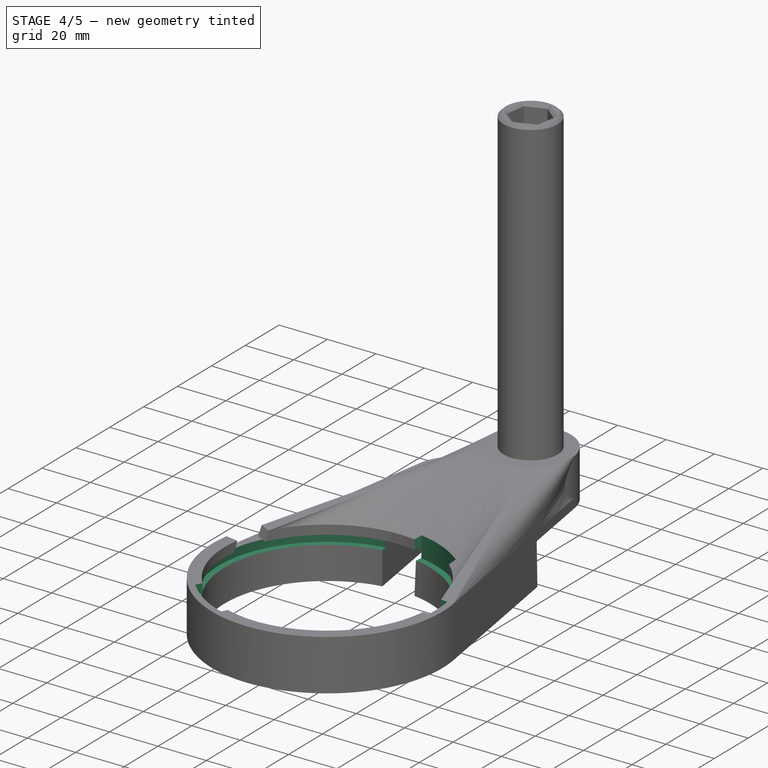
[diagram: stage 4 of 5 — iso view after this stage's code; geometry added in this stage tinted green]
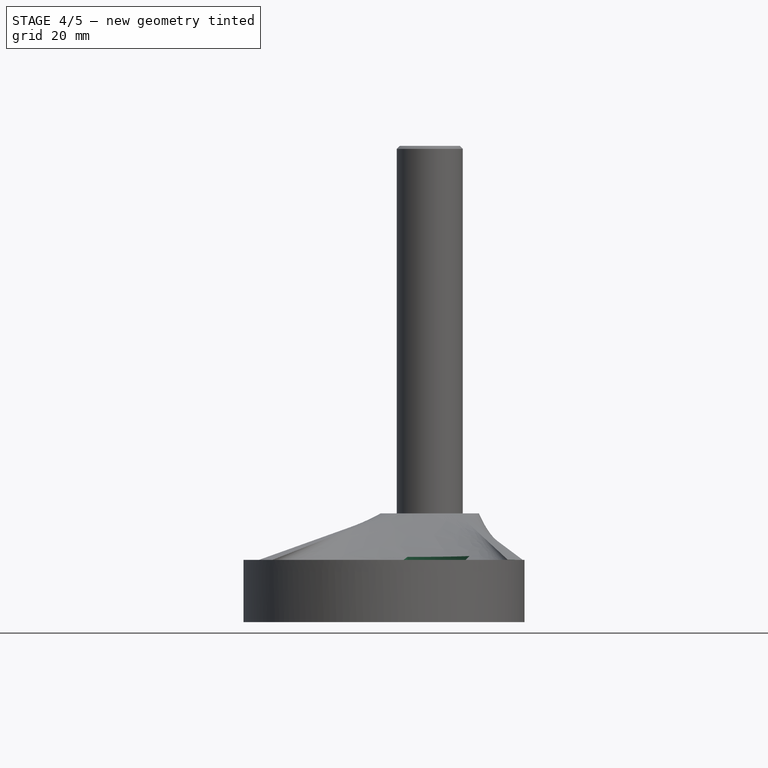
[diagram: stage 4 of 5 — front view after this stage's code; geometry added in this stage tinted green]
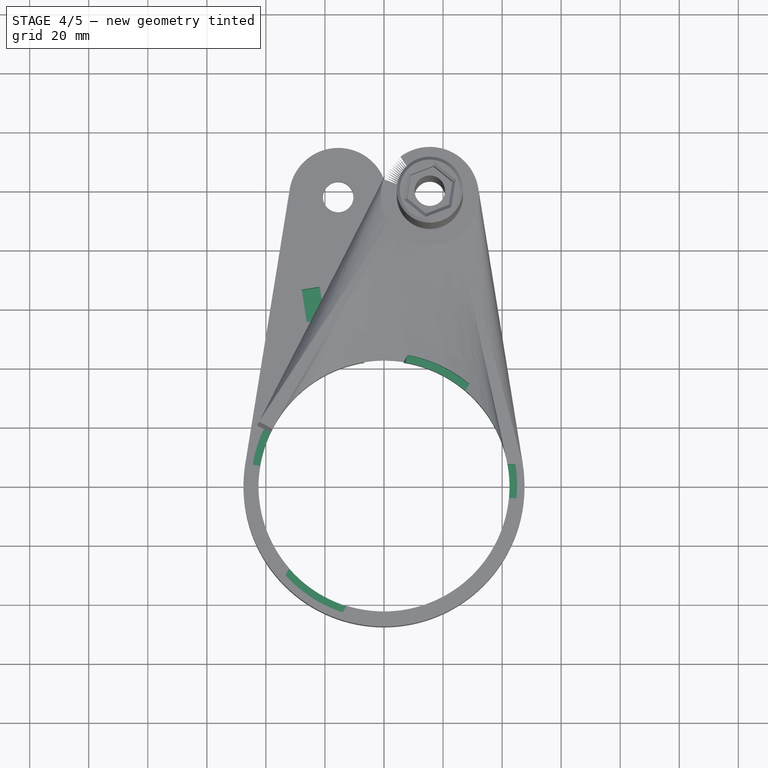
[diagram: stage 4 of 5 — top view after this stage's code; geometry added in this stage tinted green]
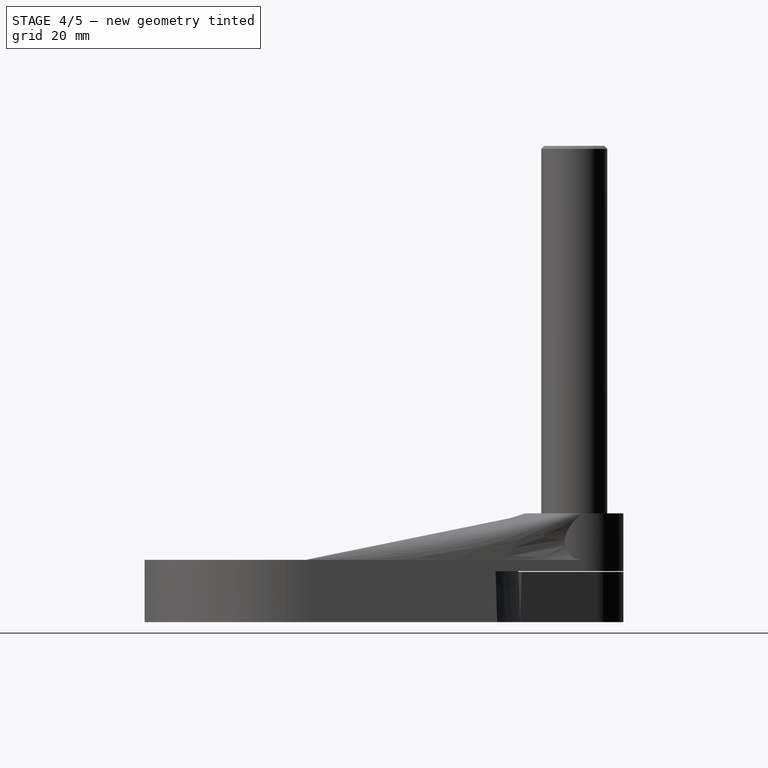
[diagram: stage 4 of 5 — right view after this stage's code; geometry added in this stage tinted green]
FEATURE [PartDesign::Chamfer] Chamfer
  Angle = 45
  Base = -> Pocket002 [Face54]
  BaseFeature = -> Pocket002
  ChamferType = 0
  FlipDirection = false
  Size = 1
  Size2 = 1
  SupportTransform = false
  UseAllEdges = false
FEATURE [Sketcher::SketchObject] Sketch017
  ExternalGeometry = -> [Chamfer]
  FullyConstrained = true
  MapMode = 5
  Placement = pos=(1.23e-14,1.9e-15,0) rot=(0.516965,0.605288,0.605288;2.18734rad)
  Support = -> [Chamfer]
  sketch-geometry (4):
    g0: LineSegment StartX=42.5116 StartY=17.272 StartZ=0 EndX=45.0516 EndY=17.272 EndZ=0
    g1: LineSegment StartX=45.0516 StartY=17.272 StartZ=0 EndX=45.0516 EndY=13.462 EndZ=0
    g2: LineSegment StartX=45.0516 StartY=13.462 StartZ=0 EndX=42.5116 EndY=13.462 EndZ=0
    g3: LineSegment StartX=42.5116 StartY=13.462 StartZ=0 EndX=42.5116 EndY=17.272 EndZ=0
  constraints (12):
    c: Coincident(g0,g1)
    c: Coincident(g1,g2)
    c: Coincident(g2,g3)
    c: Coincident(g3,g0)
    c: Horizontal(g0)
    c: Horizontal(g2)
    c: Vertical(g1)
    c: Vertical(g3)
    c: PointOnObject(g-3,g3)
    c: DistanceX(g0,g0) = 2.54
    c: DistanceY(g1,g1) = 3.81
    c: DistanceY(g0,g-3) = 3.81
FEATURE [PartDesign::Groove] Groove001
  Angle = 360
  Axis = (1e-16,1e-16,1)
  Base = (0,0,0)
  BaseFeature = -> Chamfer
  Profile = -> Sketch017
  ReferenceAxis = -> Z_Axis
FEATURE [Sketcher::SketchObject] Sketch018
  ExternalGeometry = -> [Groove001]
  FullyConstrained = false
  MapMode = 5
  Placement = pos=(0,0,21.082) rot=(0,0,1;0rad)
  Support = -> [Groove001]
  sketch-geometry (8):
    g0: LineSegment StartX=7.94024 StartY=44.3463 StartZ=0 EndX=-33.388 EndY=-30.247 EndZ=0
    g1: LineSegment StartX=-13.9698 StartY=-42.8309 StartZ=0 EndX=7.48027 EndY=-4.11575 EndZ=0
    g2: ArcOfCircle CenterX=1.9e-15 CenterY=1.9e-15 CenterZ=0 NormalX=0 NormalY=0 NormalZ=1 AngleXU=0 Radius=45.0516 StartAngle=0.874187 EndAngle=1.39362
    g3: ArcOfCircle CenterX=1.9e-15 CenterY=1.9e-15 CenterZ=0 NormalX=0 NormalY=0 NormalZ=1 AngleXU=0 Radius=45.0516 StartAngle=3.87767 EndAngle=4.39711
    g4: ArcOfCircle CenterX=1.9e-15 CenterY=1.9e-15 CenterZ=0 NormalX=0 NormalY=0 NormalZ=1 AngleXU=0 Radius=45.0516 StartAngle=6.1917 EndAngle=6.4488
    g5: LineSegment StartX=44.4351 StartY=7.42728 StartZ=0 EndX=13.8757 EndY=7.42728 EndZ=0
    g6: LineSegment StartX=44.8632 StartY=-4.11575 StartZ=0 EndX=7.48027 EndY=-4.11575 EndZ=0
    g7: LineSegment StartX=13.8757 StartY=7.42728 StartZ=0 EndX=28.906 EndY=34.5556 EndZ=0
  constraints (17):
    c: Coincident(g0,g-3)
    c: PointOnObject(g0,g-3)
    c: Parallel(g0,g1)
    c: Coincident(g2,g-3)
    c: Coincident(g2,g0)
    c: Coincident(g2,g7)
    c: Coincident(g3,g2)
    c: Coincident(g3,g0)
    c: Coincident(g3,g1)
    c: Coincident(g4,g2)
    c: PointOnObject(g4,g-3)
    c: Coincident(g5,g4)
    c: Horizontal(g5)
    c: Coincident(g6,g4)
    c: Horizontal(g6)
    c: Coincident(g1,g6)
    c: Coincident(g7,g5)
FEATURE [PartDesign::Pocket] Pocket003
  BaseFeature = -> Groove001
  Direction = (0,0,-1)
  Length = 7.62
  Length2 = 5
  Midplane = true
  Profile = -> Sketch018
  ReferenceAxis = -> Sketch018 [N_Axis]
  Type = 0
FEATURE [Sketcher::SketchObject] Sketch019
  ExternalGeometry = -> [Pocket003]
  FullyConstrained = true
  MapMode = 5
  Placement = pos=(0,0,17.018) rot=(0,0,1;0rad)
  Support = -> [Pocket003]
  sketch-geometry (6):
    g0: LineSegment StartX=-26.1325 StartY=55.5301 StartZ=0 EndX=-20.1116 EndY=56.4837 EndZ=0
    g1: LineSegment StartX=-20.1116 StartY=56.4837 StartZ=0 EndX=-21.8599 EndY=67.5221 EndZ=0
    g2: LineSegment StartX=-21.8599 StartY=67.5221 StartZ=0 EndX=-27.8808 EndY=66.5685 EndZ=0
    g3: LineSegment StartX=-27.8808 StartY=66.5685 StartZ=0 EndX=-26.1325 EndY=55.5301 EndZ=0
    g4: Circle CenterX=-23.9962 CenterY=61.5261 CenterZ=0 NormalX=0 NormalY=0 NormalZ=1 AngleXU=0 Radius=14.076
    g5: LineSegment StartX=-23.9962 StartY=61.5261 StartZ=0 EndX=-10.0935 EndY=63.7281 EndZ=0
  constraints (18):
    c: Coincident(g0,g1)
    c: Coincident(g1,g2)
    c: Coincident(g2,g3)
    c: Coincident(g3,g0)
    c: Parallel(g3,g1)
    c: Parallel(g1,g-3)
    c: Perpendicular(g1,g2)
    c: Perpendicular(g1,g0)
    c: Distance(g2) = 6.096
    c: Distance(g1,g0) = 11.176
    c: Tangent(g4,g-3)
    c: Tangent(g4,g-4)
    c: Symmetric(g0,g1,g4)
    c: Coincident(g5,g4)
    c: PointOnObject(g5,g4)
    c: Distance(g-1,g4) = 66.04
    c: Perpendicular(g-3,g5)
    c: Distance(g5,g-1) = 64.5225
FEATURE [PartDesign::Pocket] Pocket004
  BaseFeature = -> Pocket003
  Direction = (0,0,-1)
  Length = 13.335
  Length2 = 5
  Profile = -> Sketch019
  ReferenceAxis = -> Sketch019 [N_Axis]
  Type = 0
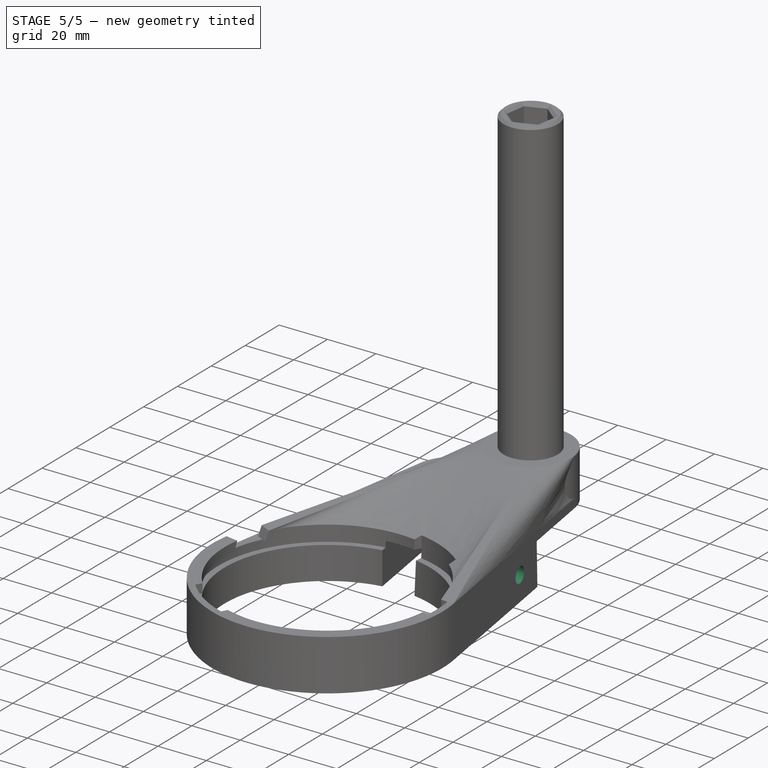
[diagram: stage 5 of 5 — iso view after this stage's code; geometry added in this stage tinted green]
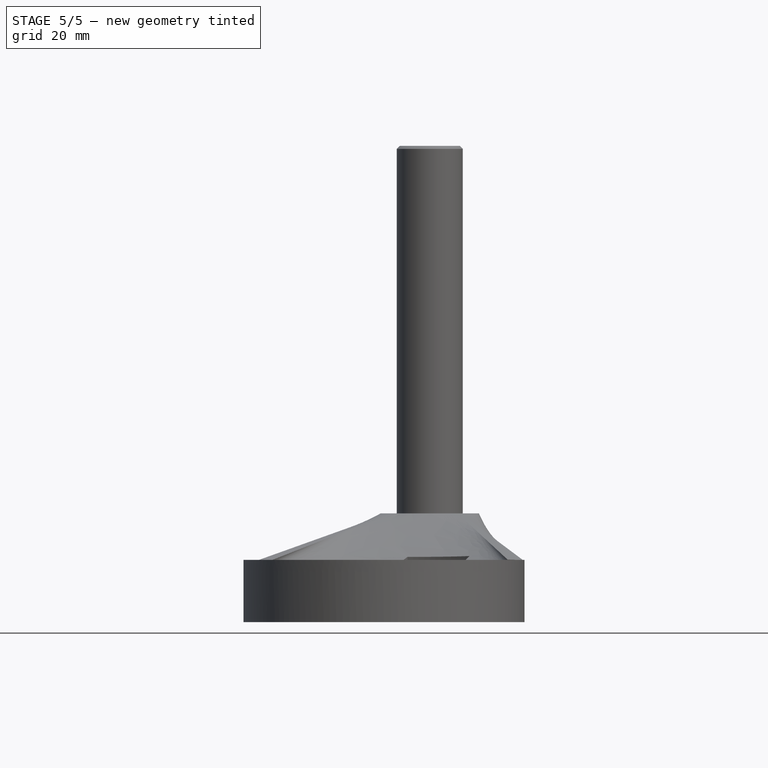
[diagram: stage 5 of 5 — front view after this stage's code; geometry added in this stage tinted green]
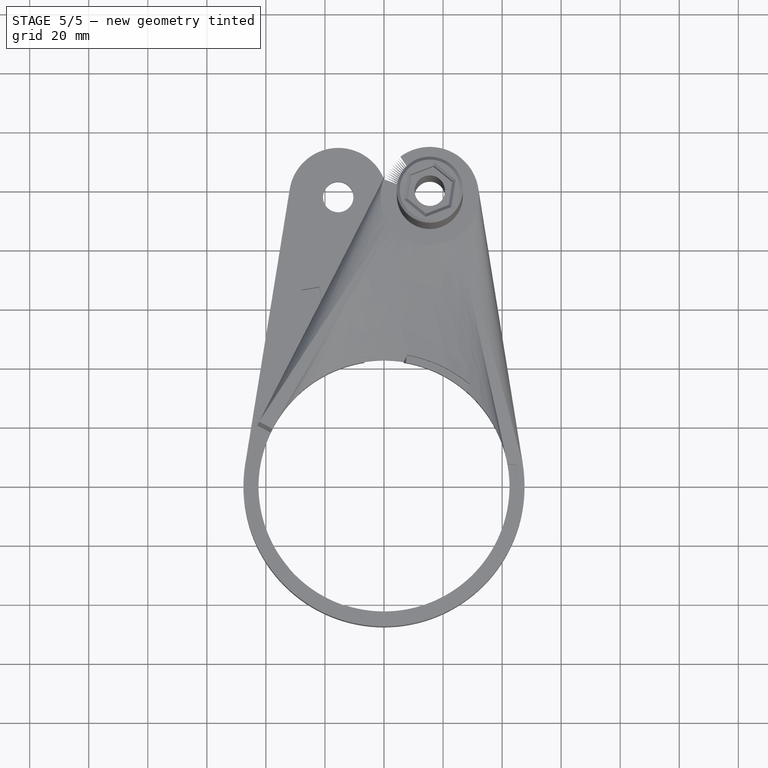
[diagram: stage 5 of 5 — top view after this stage's code; geometry added in this stage tinted green]
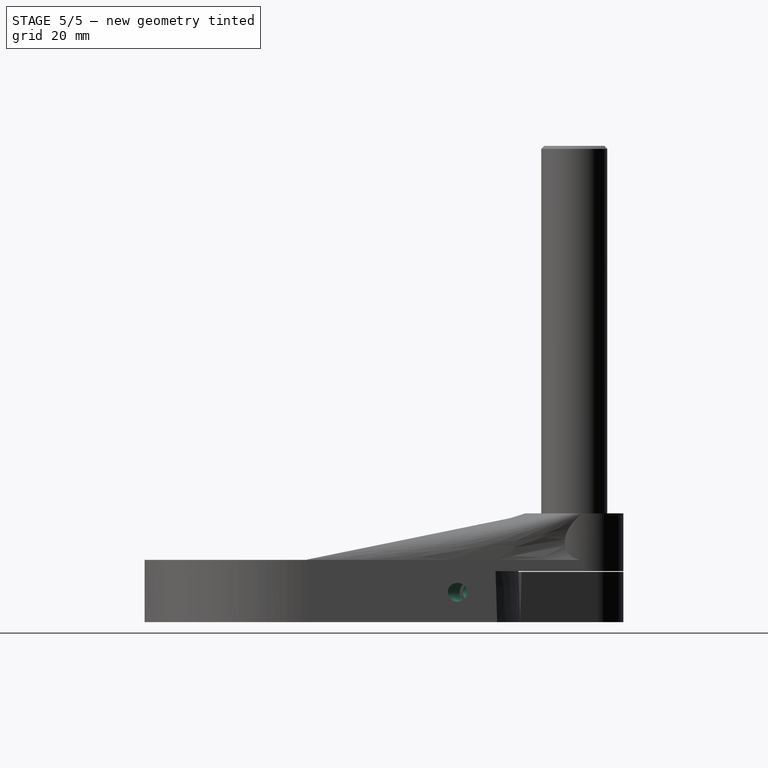
[diagram: stage 5 of 5 — right view after this stage's code; geometry added in this stage tinted green]
FEATURE [Sketcher::SketchObject] Sketch020
  ExternalGeometry = -> [Pocket004]
  FullyConstrained = true
  MapMode = 5
  Placement = pos=(-10.8922,-1.72515,0) rot=(0.637718,-0.544663,-0.544663;2.00621rad)
  Support = -> [Pocket004]
  sketch-geometry (8):
    g0: LineSegment StartX=-58.9345 StartY=13.3617 StartZ=0 EndX=-64.5225 EndY=16.5879 EndZ=0
    g1: LineSegment StartX=-64.5225 StartY=16.5879 StartZ=0 EndX=-70.1105 EndY=13.3617 EndZ=0
    g2: LineSegment StartX=-70.1105 StartY=13.3617 StartZ=0 EndX=-70.1105 EndY=6.90923 EndZ=0
    g3: LineSegment StartX=-70.1105 StartY=6.90923 StartZ=0 EndX=-64.5225 EndY=3.683 EndZ=0
    g4: LineSegment StartX=-64.5225 StartY=3.683 StartZ=0 EndX=-58.9345 EndY=6.90923 EndZ=0
    g5: LineSegment StartX=-58.9345 StartY=6.90923 StartZ=0 EndX=-58.9345 EndY=13.3617 EndZ=0
    g6: Circle CenterX=-64.5225 CenterY=10.1355 CenterZ=0 NormalX=0 NormalY=0 NormalZ=1 AngleXU=0 Radius=6.45247
    g7: Circle CenterX=-64.5225 CenterY=10.1355 CenterZ=0 NormalX=0 NormalY=0 NormalZ=1 AngleXU=0 Radius=3.175
  constraints (19):
    c: Coincident(g0,g1)
    c: Coincident(g1,g2)
    c: Coincident(g2,g3)
    c: Coincident(g3,g4)
    c: Coincident(g4,g5)
    c: Coincident(g5,g0)
    c: Equal(g0, g1-g5) x5
    c: PointOnObject(g0,g6)
    c: PointOnObject(g1,g6)
    c: PointOnObject(g2,g6)
    c: PointOnObject(g3,g6)
    c: PointOnObject(g4,g6)
    c: PointOnObject(g5,g6)
    c: DistanceX(g1,g0) = 11.176
    c: Vertical(g5)
    c: PointOnObject(g4,g-4)
    c: PointOnObject(g3,g-7)
    c: Coincident(g7,g6)
    c: Diameter(g7) = 6.35
FEATURE [PartDesign::Hole] Hole002
  BaseFeature = -> Pocket004
  CustomThreadClearance = 0
  Depth = 24.9936
  DepthType = 0
  Diameter = 7.1
  DrillForDepth = false
  DrillPoint = 1
  DrillPointAngle = 118
  HoleCutCountersinkAngle = 90
  HoleCutCustomValues = false
  HoleCutDepth = 0
  HoleCutDiameter = 0
  HoleCutType = 0
  ModelThread = false
  Profile = -> Sketch020
  Tapered = false
  TaperedAngle = 90
  ThreadClass = 0
  ThreadDepth = 24.9936
  ThreadDepthType = 0
  ThreadDirection = 0
  ThreadFit = 0
  ThreadSize = 9
  ThreadType = 3
  Threaded = false
  UseCustomThreadClearance = false
FEATURE [Sketcher::SketchObject] Sketch021
  ExternalGeometry = -> [Hole002]
  FullyConstrained = true
  MapMode = 5
  Placement = pos=(-16.9131,-2.67878,0) rot=(0.516965,0.605288,0.605288;2.18734rad)
  Support = -> [Hole002]
  sketch-geometry (1):
    g0: Circle CenterX=64.5225 CenterY=10.1355 CenterZ=0 NormalX=0 NormalY=0 NormalZ=1 AngleXU=0 Radius=3.55
  constraints (2):
    c: Coincident(g0,g-3)
    c: Tangent(g0,g-3)
FEATURE [PartDesign::Hole] Hole003
  BaseFeature = -> Hole002
  CustomThreadClearance = 0
  Depth = 7.62
  DepthType = 0
  Diameter = 7.1
  DrillForDepth = false
  DrillPoint = 1
  DrillPointAngle = 118
  HoleCutCountersinkAngle = 90
  HoleCutCustomValues = false
  HoleCutDepth = 0
  HoleCutDiameter = 0
  HoleCutType = 0
  ModelThread = false
  Profile = -> Sketch021
  Tapered = false
  TaperedAngle = 90
  ThreadClass = 0
  ThreadDepth = 7.62
  ThreadDepthType = 0
  ThreadDirection = 0
  ThreadFit = 0
  ThreadSize = 9
  ThreadType = 3
  Threaded = false
  UseCustomThreadClearance = false
FEATURE [Sketcher::SketchObject] Sketch022
  ExternalGeometry = -> [Hole003]
  FullyConstrained = true
  MapMode = 5
  Placement = pos=(4.43352,27.9921,0.333333) rot=(0.637718,0.544663,0.544663;2.00621rad)
  Support = -> [DatumPlane001]
  sketch-geometry (3):
    g0: Circle CenterX=35.3738 CenterY=9.80213 CenterZ=0 NormalX=0 NormalY=0 NormalZ=1 AngleXU=0 Radius=3.175
    g1: GeomPoint X=-28.3411 Y=-0.333333 Z=0
    g2: LineSegment StartX=33.0235 StartY=9.80213 StartZ=0 EndX=35.3738 EndY=9.80213 EndZ=0
  constraints (6):
    c: Symmetric(g-3,g-3,g1)
    c: Distance(g1,g0) = 64.516
    c: Coincident(g2,g-4)
    c: Coincident(g2,g0)
    c: Horizontal(g2)
    c: Diameter(g0) = 6.35
FEATURE [PartDesign::Pocket] Pocket005
  BaseFeature = -> Hole003
  Direction = (-0.987688,0.156434,0)
  Length = 5
  Length2 = 5
  Profile = -> Sketch022
  ReferenceAxis = -> Sketch022 [N_Axis]
  Reversed = true
  Type = 1
FEATURE [PartDesign::Hole] Hole004
  BaseFeature = -> Pocket005
  CustomThreadClearance = 0
  Depth = 17.3228
  DepthType = 0
  Diameter = 7.5
  DrillForDepth = false
  DrillPoint = 1
  DrillPointAngle = 118
  HoleCutCountersinkAngle = 82
  HoleCutCustomValues = false
  HoleCutDepth = 0
  HoleCutDiameter = 12.07
  HoleCutType = 0
  ModelThread = false
  Profile = -> Sketch022
  Reversed = true
  Tapered = false
  TaperedAngle = 90
  ThreadClass = 0
  ThreadDepth = 17.3228
  ThreadDepthType = 0
  ThreadDirection = 0
  ThreadFit = 2
  ThreadSize = 9
  ThreadType = 3
  Threaded = false
  UseCustomThreadClearance = false
FEATURE [PartDesign::Body] Body
  Group = -> [Sketch,Sketch001,Pad,Sketch003,Pad002,Sketch004,Pad003,Sketch005,Pad004,Sketch007,Sketch008,AdditiveLoft,Sketch009,Pad005,Sketch010,Groove,DatumLine,DatumPlane,Local_CS,DatumPlane001,DatumPlane002,Sketch011,Pocket,Sketch012,Hole,Sketch013,Hole001,Sketch014,Pad006,Sketch015,Pocket001,Sketch016,Pocket002,Chamfer,Sketch017,Groove001,Sketch018,Pocket003,Sketch019,Pocket004,Sketch020,Hole002,Sketch021,+4 more]
  Origin = -> Origin
  Tip = -> Hole004
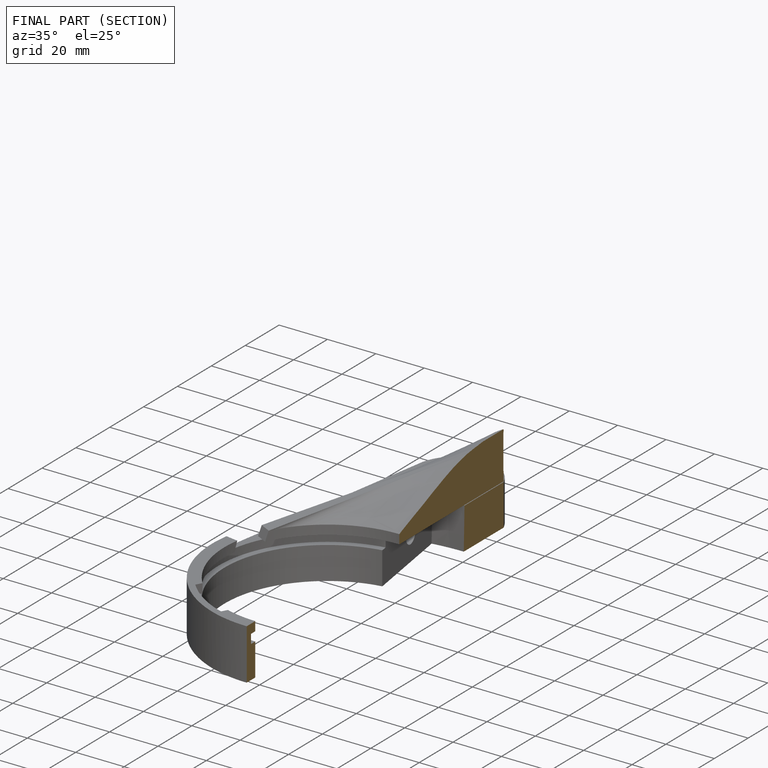
[diagram: finished part — half-section view (interior)]
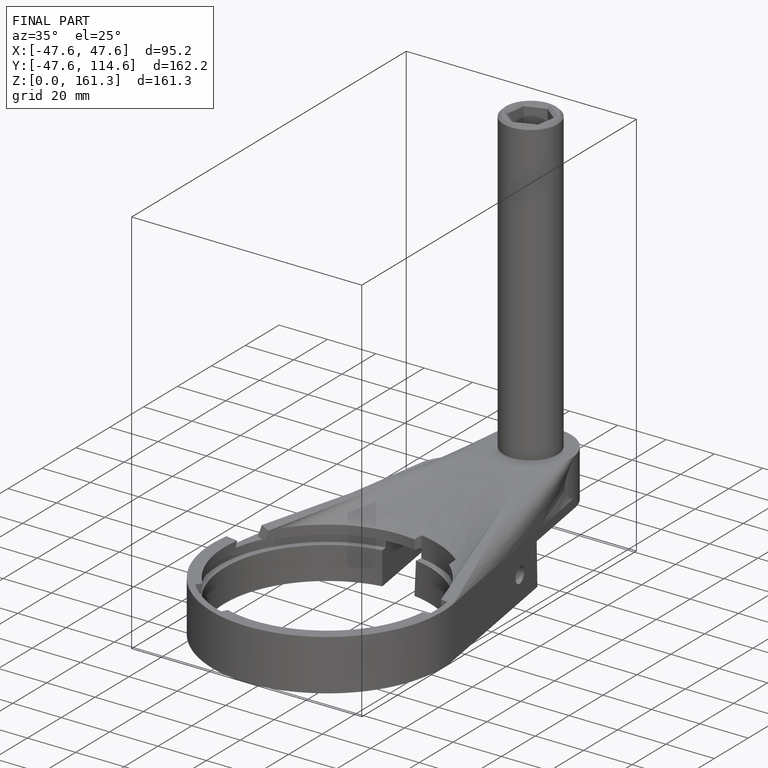
[diagram: finished part — iso view with bounding-box wireframe]
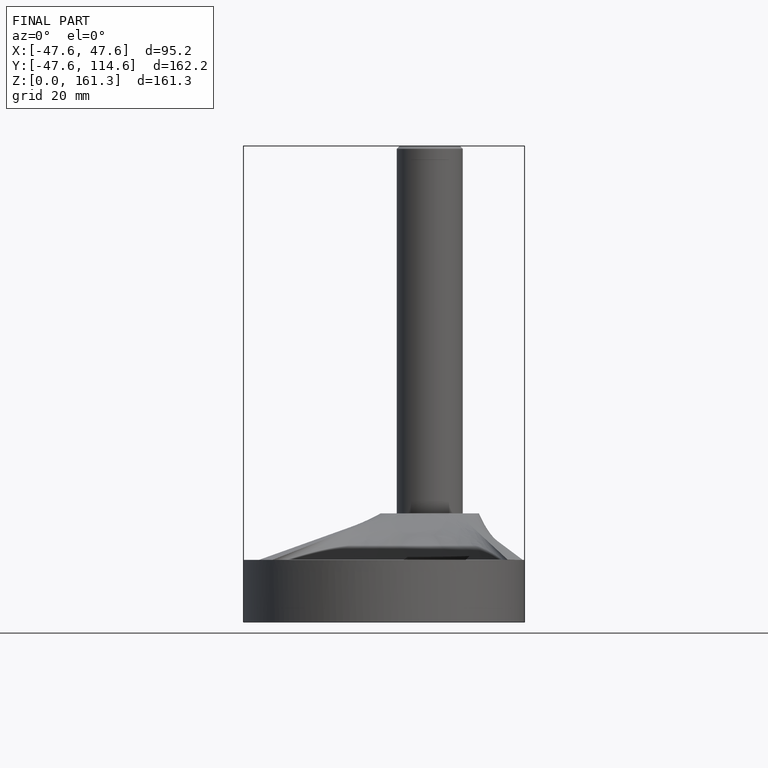
[diagram: finished part — front view with bounding-box wireframe]
